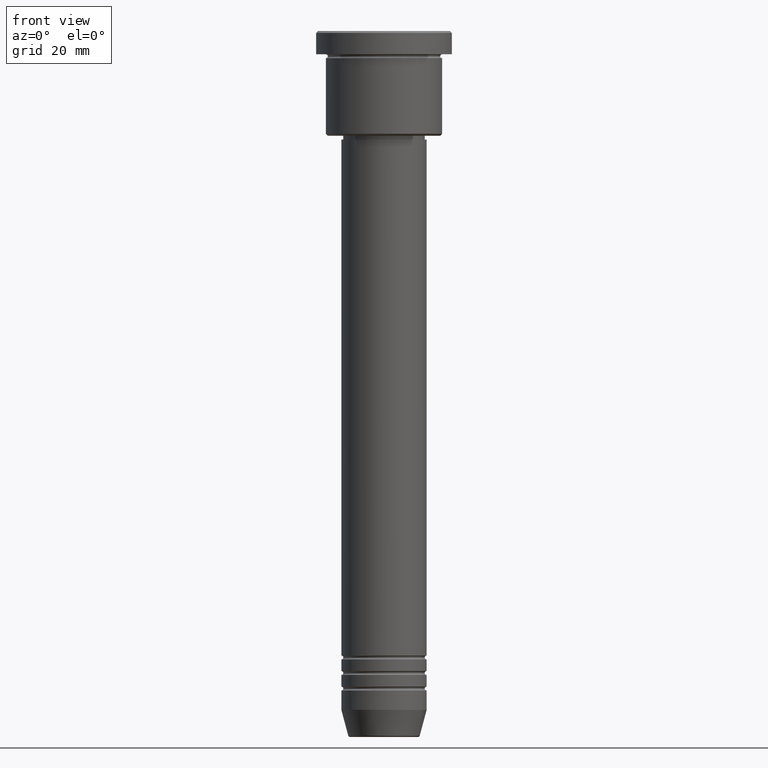
[diagram: clean part render]
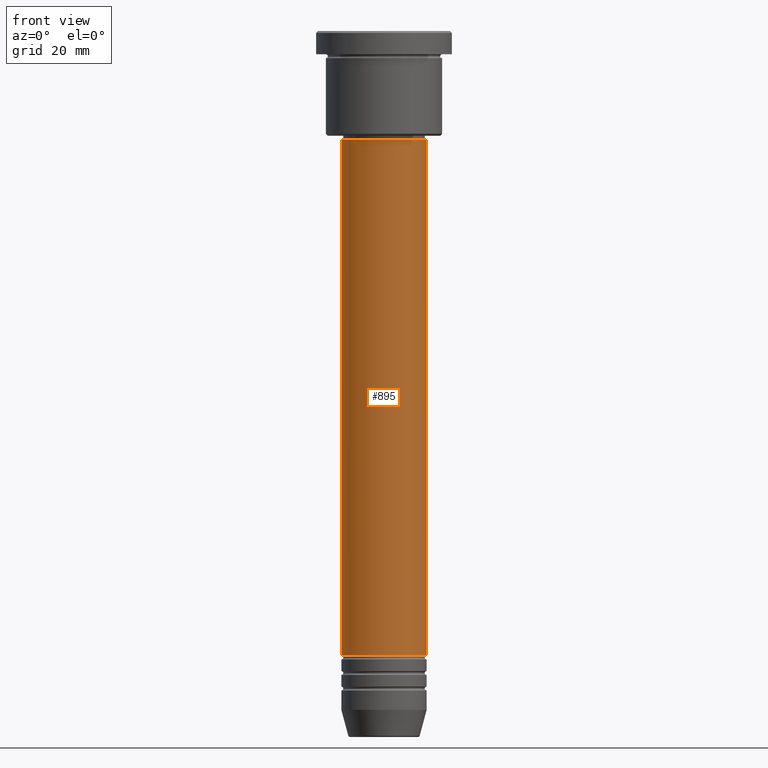
[diagram: same view with one face highlighted and labeled with its STEP entity id]
A machine part, front view. The second image highlights one B-rep face of the part: STEP entity #895.
In plain terms, the highlighted cylindrical surface (partial cylindrical patch) has radius 11 mm, axis along (-0, -0, 1).
Its self-contained STEP definition (entity closure, byte-faithful):
#11 = CARTESIAN_POINT ( 'NONE',  ( -11.00000000000000000, 1.347111479062088405E-15, -27.99999999999998934 ) ) ;
#122 = EDGE_LOOP ( 'NONE', ( #588, #830, #564, #578 ) ) ;
#222 = CARTESIAN_POINT ( 'NONE',  ( 0.000000000000000000, 0.000000000000000000, 0.000000000000000000 ) ) ;
#330 = VERTEX_POINT ( 'NONE', #659 ) ;
#344 = AXIS2_PLACEMENT_3D ( 'NONE', #222, #1055, #780 ) ;
#422 = FACE_OUTER_BOUND ( 'NONE', #122, .T. ) ;
#436 = DIRECTION ( 'NONE',  ( -0.000000000000000000, -0.000000000000000000, 1.000000000000000000 ) ) ;
#528 = DIRECTION ( 'NONE',  ( -0.000000000000000000, -0.000000000000000000, 1.000000000000000000 ) ) ;
#563 = VERTEX_POINT ( 'NONE', #1118 ) ;
#564 = ORIENTED_EDGE ( 'NONE', *, *, #700, .T. ) ;
#573 = VECTOR ( 'NONE', #603, 1000.000000000000000 ) ;
#578 = ORIENTED_EDGE ( 'NONE', *, *, #820, .F. ) ;
#588 = ORIENTED_EDGE ( 'NONE', *, *, #855, .F. ) ;
#601 = CARTESIAN_POINT ( 'NONE',  ( 0.000000000000000000, 0.000000000000000000, -160.9999999999998579 ) ) ;
#603 = DIRECTION ( 'NONE',  ( -0.000000000000000000, -0.000000000000000000, 1.000000000000000000 ) ) ;
#616 = CIRCLE ( 'NONE', #914, 11.00000000000000000 ) ;
#642 = CIRCLE ( 'NONE', #1005, 11.00000000000000000 ) ;
#656 = VECTOR ( 'NONE', #528, 1000.000000000000000 ) ;
#659 = CARTESIAN_POINT ( 'NONE',  ( -11.00000000000000000, 1.347111479062088405E-15, -160.9999999999998579 ) ) ;
#700 = EDGE_CURVE ( 'NONE', #563, #1107, #903, .T. ) ;
#740 = CARTESIAN_POINT ( 'NONE',  ( 0.000000000000000000, 0.000000000000000000, -27.99999999999998934 ) ) ;
#780 = DIRECTION ( 'NONE',  ( 1.000000000000000000, 0.000000000000000000, 0.000000000000000000 ) ) ;
#820 = EDGE_CURVE ( 'NONE', #1085, #1107, #616, .T. ) ;
#830 = ORIENTED_EDGE ( 'NONE', *, *, #1180, .T. ) ;
#855 = EDGE_CURVE ( 'NONE', #330, #1085, #942, .T. ) ;
#882 = DIRECTION ( 'NONE',  ( 1.000000000000000000, 0.000000000000000000, 0.000000000000000000 ) ) ;
#895 = ADVANCED_FACE ( 'NONE', ( #422 ), #1150, .T. ) ;
#903 = LINE ( 'NONE', #977, #656 ) ;
#914 = AXIS2_PLACEMENT_3D ( 'NONE', #740, #1126, #1121 ) ;
#942 = LINE ( 'NONE', #1145, #573 ) ;
#977 = CARTESIAN_POINT ( 'NONE',  ( 11.00000000000000000, 0.000000000000000000, 0.000000000000000000 ) ) ;
#1005 = AXIS2_PLACEMENT_3D ( 'NONE', #601, #436, #882 ) ;
#1032 = CARTESIAN_POINT ( 'NONE',  ( 11.00000000000000000, 0.000000000000000000, -27.99999999999998934 ) ) ;
#1055 = DIRECTION ( 'NONE',  ( -0.000000000000000000, -0.000000000000000000, 1.000000000000000000 ) ) ;
#1085 = VERTEX_POINT ( 'NONE', #11 ) ;
#1107 = VERTEX_POINT ( 'NONE', #1032 ) ;
#1118 = CARTESIAN_POINT ( 'NONE',  ( 11.00000000000000000, 0.000000000000000000, -160.9999999999998579 ) ) ;
#1121 = DIRECTION ( 'NONE',  ( 1.000000000000000000, 0.000000000000000000, 0.000000000000000000 ) ) ;
#1126 = DIRECTION ( 'NONE',  ( -0.000000000000000000, -0.000000000000000000, 1.000000000000000000 ) ) ;
#1145 = CARTESIAN_POINT ( 'NONE',  ( -11.00000000000000000, 1.347111479062088405E-15, 0.000000000000000000 ) ) ;
#1150 = CYLINDRICAL_SURFACE ( 'NONE', #344, 11.00000000000000000 ) ;
#1180 = EDGE_CURVE ( 'NONE', #330, #563, #642, .T. ) ;